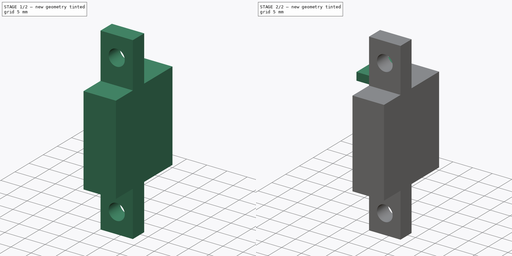
[diagram: build sequence overview — one tinted view per stage of 2, left to right]
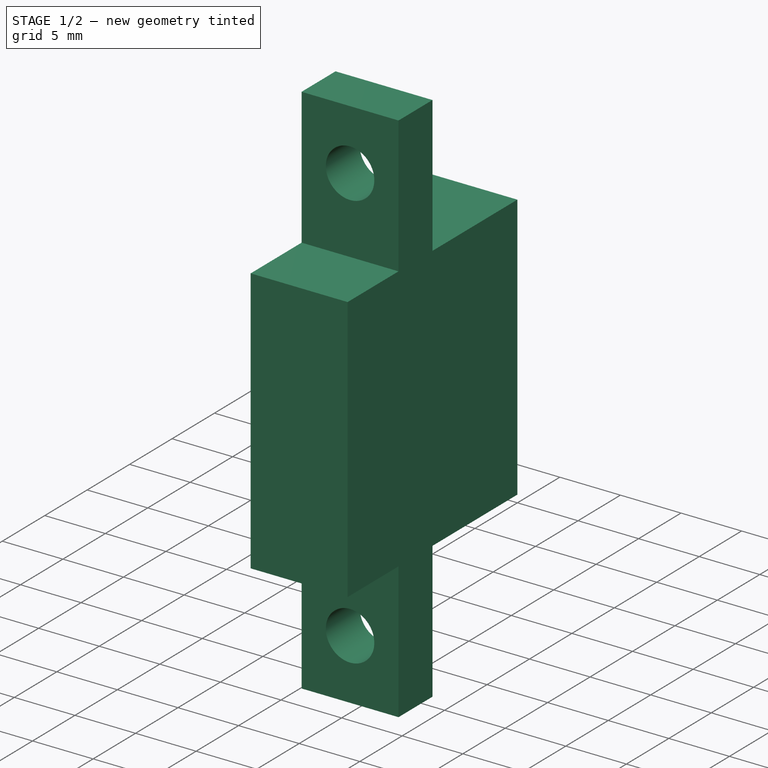
[diagram: stage 1 of 2 — iso view after this stage's code; geometry added in this stage tinted green]
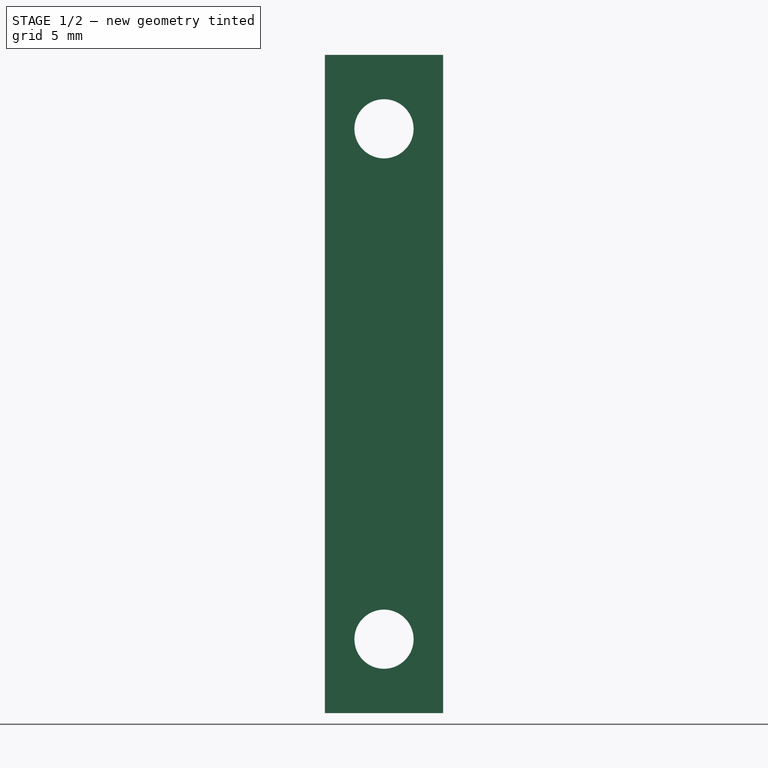
[diagram: stage 1 of 2 — front view after this stage's code; geometry added in this stage tinted green]
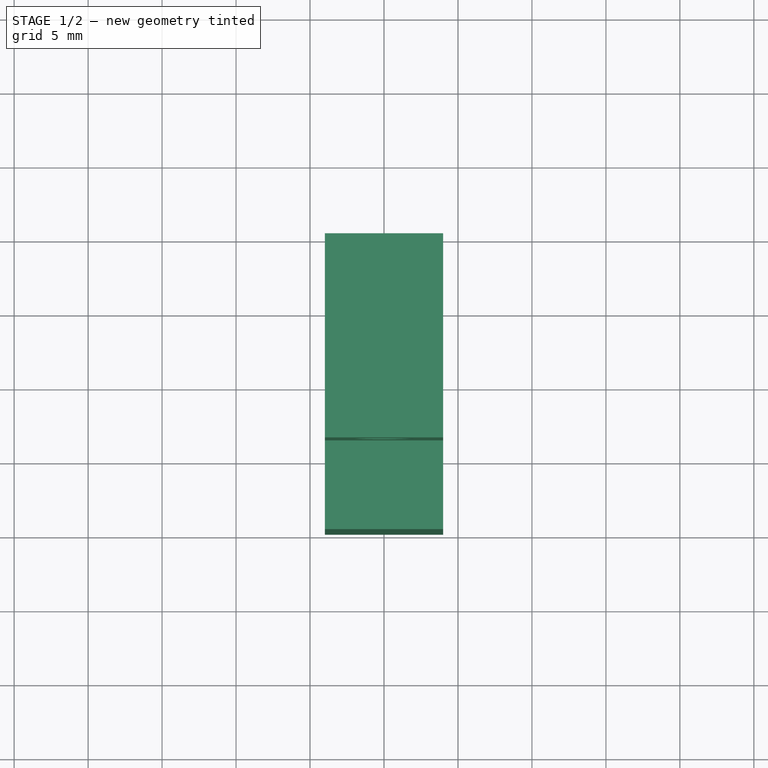
[diagram: stage 1 of 2 — top view after this stage's code; geometry added in this stage tinted green]
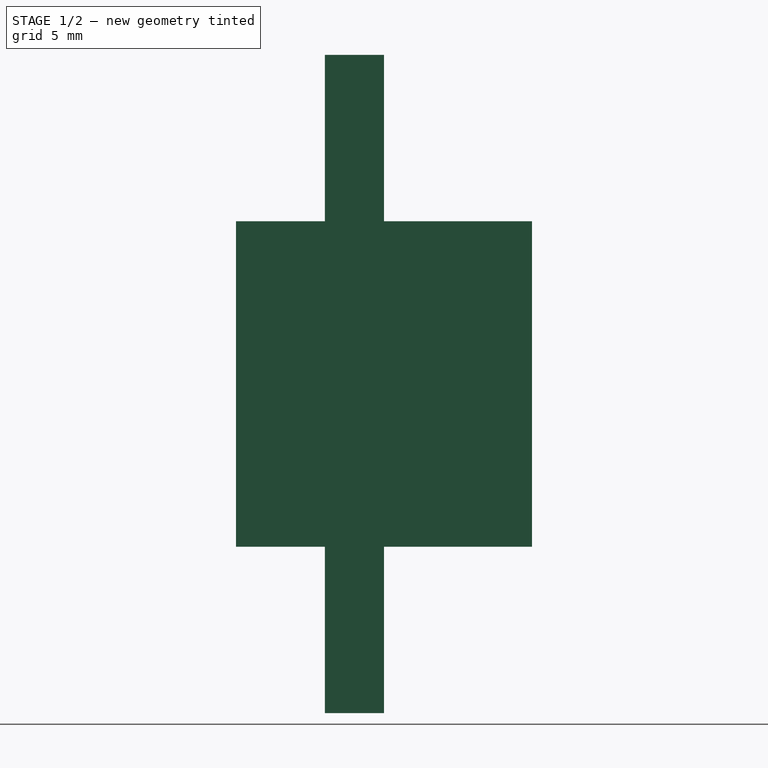
[diagram: stage 1 of 2 — right view after this stage's code; geometry added in this stage tinted green]
FCSTD DOCUMENT  (FreeCAD 2023.521R14555 (Git shallow))
Label: FanMount
License: All rights reserved
objects: Sketcher::SketchObject×4, PartDesign::Pad×4, PartDesign::CoordinateSystem×1, PartDesign::Plane×1, PartDesign::Body×1, App::Part×1
note: 23 computed .brp shape members not serialized (recipe doc carries the construction recipe); baked Part::Feature solids carry a one-line shape summary decoded from their .brp

FEATURE [PartDesign::CoordinateSystem] LCS_0
  AttacherType = Attacher::AttachEngine3D
  AttachmentSupport = -> [X_Axis]
  InvalidShape = false
  MapMode = 2
  Support = -> [X_Axis]
  TreeRank = 3
  ValidateShape = false
FEATURE [Sketcher::SketchObject] Sketch
  ArcFitTolerance = 1e-06
  AttachmentSupport = -> [XZ_Plane001]
  ExternalBSplineMaxDegree = 5
  ExternalBSplineTolerance = 0.0001
  FullyConstrained = true
  InternalTolerance = 1e-06
  InvalidShape = false
  MakeInternals = false
  MapMode = 5
  Placement = pos=(0,0,0) rot=(1,0,0;1.5708rad)
  Support = -> [XZ_Plane001]
  TreeRank = 23
  ValidateShape = false
  sketch-geometry (7):
    g0: LineSegment StartX=-4 StartY=-22.25 StartZ=0 EndX=-4 EndY=22.25 EndZ=0
    g1: LineSegment StartX=-4 StartY=22.25 StartZ=0 EndX=4 EndY=22.25 EndZ=0
    g2: LineSegment StartX=4 StartY=22.25 StartZ=0 EndX=4 EndY=-22.25 EndZ=0
    g3: LineSegment StartX=4 StartY=-22.25 StartZ=0 EndX=-4 EndY=-22.25 EndZ=0
    g4: GeomPoint [constr] X=0 Y=0 Z=0
    g5: Circle CenterX=0 CenterY=17.25 CenterZ=0 NormalX=0 NormalY=0 NormalZ=1 AngleXU=0 Radius=2
    g6: Circle CenterX=0 CenterY=-17.25 CenterZ=0 NormalX=0 NormalY=0 NormalZ=1 AngleXU=0 Radius=2
  constraints (17):
    c: Coincident(g0,g1)
    c: Coincident(g1,g2)
    c: Coincident(g2,g3)
    c: Coincident(g3,g0)
    c: Horizontal(g1)
    c: Horizontal(g3)
    c: Vertical(g0)
    c: Vertical(g2)
    c: Symmetric(g1,g0,g4)
    c: Coincident(g4,g-1)
    c: DistanceY(g2,g2) = 44.5
    c: DistanceX(g1,g1) = 8
    c: Vertical(g5,g4)
    c: Equal(g6,g5)
    c: Diameter(g5) = 4
    c: Symmetric(g5,g6,g4)
    c: DistanceY(g2,g6) = 5
FEATURE [PartDesign::Pad] Pad
  AddSubType = 0
  AlongSketchNormal = false
  AutoTaperInnerAngle = true
  CheckUpToFaceLimits = true
  ClaimChildren = false
  Direction = (0,-1,2e-16)
  Fit = 0
  FitJoin = 0
  InnerFit = 0
  InnerFitJoin = 0
  InvalidShape = false
  Length = 4
  Length2 = 10
  Linearize = true
  NewSolid = false
  Profile = -> Sketch
  ReferenceAxis = -> Sketch [N_Axis]
  Suppress = false
  TaperInnerAngle = 0
  TaperInnerAngleRev = 0
  TreeRank = 24
  Type = 0
  ValidateShape = true
  _ProfileBasedVersion = 1
FEATURE [PartDesign::Plane] DatumPlane
  AttachmentOffset = pos=(0,0,10) rot=(0,0,1;0rad)
  AttachmentSupport = -> [XZ_Plane001]
  InvalidShape = false
  Length = 10
  MapMode = 5
  MinimumLength = 10
  MinimumWidth = 10
  Placement = pos=(0,-10,2.2e-15) rot=(1,0,0;1.5708rad)
  ResizeMode = 0
  Support = -> [XZ_Plane001]
  TreeRank = 25
  ValidateShape = false
  Width = 44.5
FEATURE [Sketcher::SketchObject] Sketch001
  ArcFitTolerance = 1e-06
  AttachmentSupport = -> [DatumPlane]
  ExternalBSplineMaxDegree = 5
  ExternalBSplineTolerance = 0.0001
  ExternalGeometry = -> [Pad]
  FullyConstrained = true
  InternalTolerance = 1e-06
  InvalidShape = false
  MakeInternals = false
  MapMode = 5
  Placement = pos=(0,-10,2.2e-15) rot=(1,0,0;1.5708rad)
  Support = -> [DatumPlane]
  TreeRank = 26
  ValidateShape = false
  sketch-geometry (5):
    g0: LineSegment StartX=-4 StartY=-11 StartZ=0 EndX=-4 EndY=11 EndZ=0
    g1: LineSegment StartX=-4 StartY=11 StartZ=0 EndX=4 EndY=11 EndZ=0
    g2: LineSegment StartX=4 StartY=11 StartZ=0 EndX=4 EndY=-11 EndZ=0
    g3: LineSegment StartX=4 StartY=-11 StartZ=0 EndX=-4 EndY=-11 EndZ=0
    g4: GeomPoint [constr] X=0 Y=0 Z=0
  constraints (12):
    c: Coincident(g0,g1)
    c: Coincident(g1,g2)
    c: Coincident(g2,g3)
    c: Coincident(g3,g0)
    c: Horizontal(g1)
    c: Horizontal(g3)
    c: Vertical(g0)
    c: Vertical(g2)
    c: Symmetric(g1,g0,g4)
    c: Coincident(g4,g-1)
    c: Vertical(g-3,g1)
    c: DistanceY(g2,g2) = 22
FEATURE [PartDesign::Pad] Pad001
  AddSubType = 0
  AlongSketchNormal = false
  AutoTaperInnerAngle = true
  BaseFeature = -> Pad
  CheckUpToFaceLimits = true
  ClaimChildren = false
  Direction = (0,-1,2e-16)
  Fit = 0
  FitJoin = 0
  InnerFit = 0
  InnerFitJoin = 0
  InvalidShape = false
  Length = 10
  Length2 = 10
  Linearize = true
  NewSolid = false
  Offset = 10
  Profile = -> Sketch001
  ReferenceAxis = -> Sketch001 [N_Axis]
  Suppress = false
  TaperInnerAngle = 0
  TaperInnerAngleRev = 0
  TreeRank = 27
  Type = 3
  UpToFace = -> Pad [Face7]
  ValidateShape = true
  _ProfileBasedVersion = 1
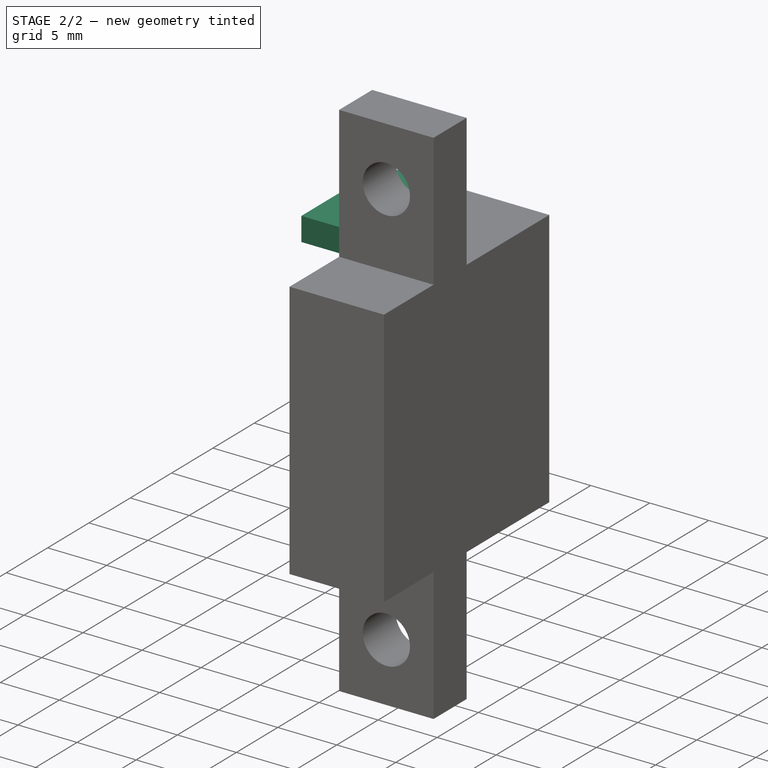
[diagram: stage 2 of 2 — iso view after this stage's code; geometry added in this stage tinted green]
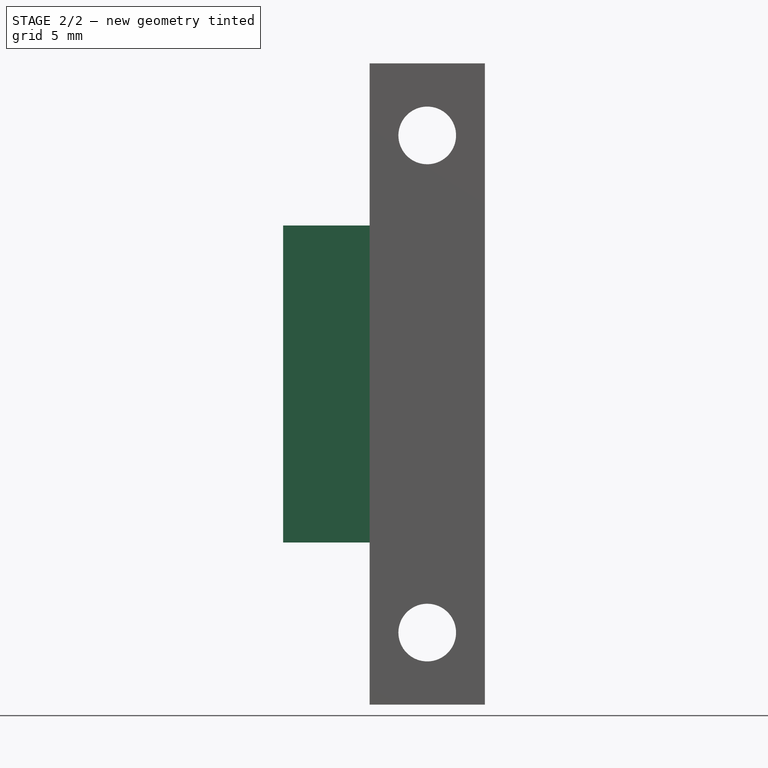
[diagram: stage 2 of 2 — front view after this stage's code; geometry added in this stage tinted green]
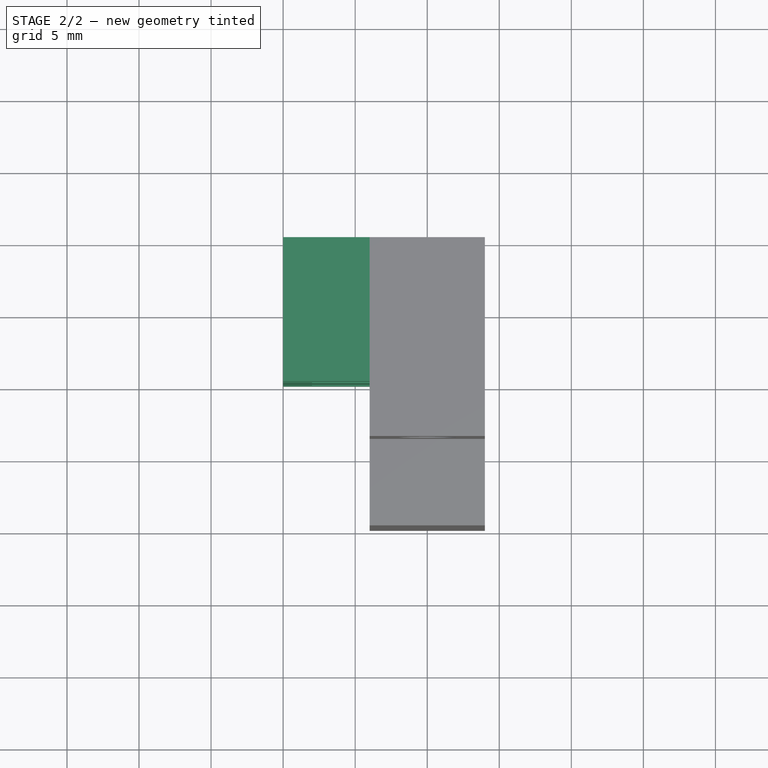
[diagram: stage 2 of 2 — top view after this stage's code; geometry added in this stage tinted green]
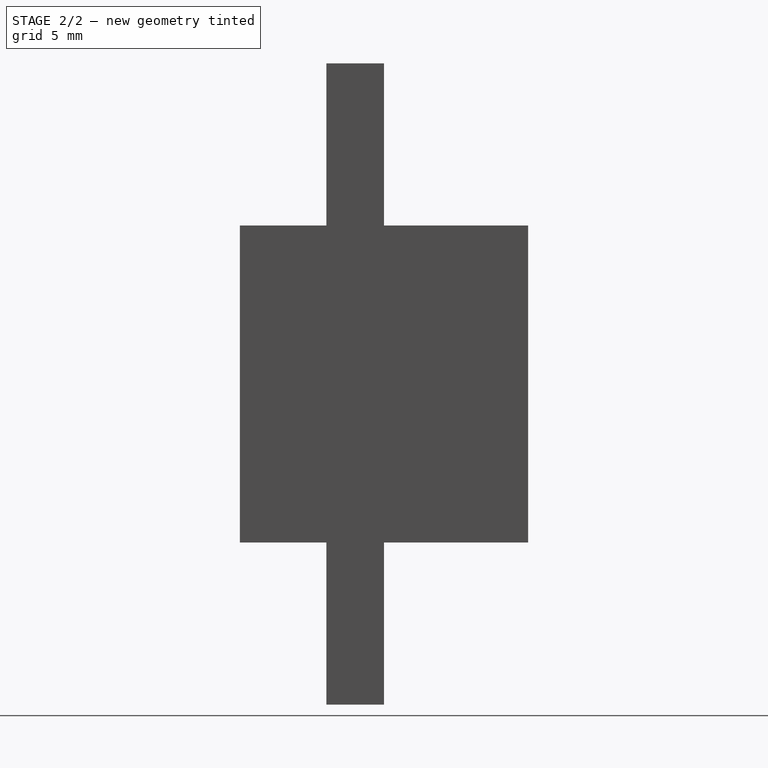
[diagram: stage 2 of 2 — right view after this stage's code; geometry added in this stage tinted green]
FEATURE [Sketcher::SketchObject] Sketch002
  ArcFitTolerance = 1e-06
  AttachmentSupport = -> [Pad001]
  ExternalBSplineMaxDegree = 5
  ExternalBSplineTolerance = 0.0001
  ExternalGeometry = -> [Pad001]
  FullyConstrained = true
  InternalTolerance = 1e-06
  InvalidShape = false
  MakeInternals = false
  MapMode = 5
  Placement = pos=(0,10,-2.2e-15) rot=(0,0.707107,0.707107;3.14159rad)
  Support = -> [Pad001]
  TreeRank = 28
  ValidateShape = false
  sketch-geometry (4):
    g0: LineSegment StartX=4 StartY=11 StartZ=0 EndX=10 EndY=11 EndZ=0
    g1: LineSegment StartX=10 StartY=11 StartZ=0 EndX=10 EndY=-11 EndZ=0
    g2: LineSegment StartX=10 StartY=-11 StartZ=0 EndX=4 EndY=-11 EndZ=0
    g3: LineSegment StartX=4 StartY=-11 StartZ=0 EndX=4 EndY=11 EndZ=0
  constraints (10):
    c: Coincident(g0,g1)
    c: Coincident(g1,g2)
    c: Coincident(g2,g3)
    c: Coincident(g3,g0)
    c: Horizontal(g0)
    c: Horizontal(g2)
    c: Vertical(g1)
    c: Coincident(g0,g-3)
    c: Coincident(g2,g-3)
    c: DistanceX(g2,g2) = 6
FEATURE [PartDesign::Pad] Pad002
  AddSubType = 0
  AlongSketchNormal = false
  AutoTaperInnerAngle = true
  BaseFeature = -> Pad001
  CheckUpToFaceLimits = true
  ClaimChildren = false
  Direction = (0,1,-2e-16)
  Fit = 0
  FitJoin = 0
  InnerFit = 0
  InnerFitJoin = 0
  InvalidShape = false
  Length = 5
  Length2 = 10
  Linearize = true
  NewSolid = false
  Profile = -> Sketch002
  ReferenceAxis = -> Sketch002 [N_Axis]
  Reversed = true
  Suppress = false
  TaperInnerAngle = 0
  TaperInnerAngleRev = 0
  TreeRank = 29
  Type = 0
  ValidateShape = true
  _ProfileBasedVersion = 1
FEATURE [Sketcher::SketchObject] Sketch003
  ArcFitTolerance = 1e-06
  AttachmentSupport = -> [Pad002]
  ExternalBSplineMaxDegree = 5
  ExternalBSplineTolerance = 0.0001
  ExternalGeometry = -> [Pad002]
  FullyConstrained = true
  InternalTolerance = 1e-06
  InvalidShape = false
  MakeInternals = false
  MapMode = 5
  Placement = pos=(0,5,-8e-16) rot=(1,0,0;1.5708rad)
  Support = -> [Pad002]
  TreeRank = 30
  ValidateShape = false
  sketch-geometry (23):
    g0: LineSegment StartX=-8 StartY=6 StartZ=0 EndX=-10 EndY=6 EndZ=0
    g1: LineSegment StartX=-10 StartY=6 StartZ=0 EndX=-10 EndY=4 EndZ=0
    g2: LineSegment StartX=-10 StartY=4 StartZ=0 EndX=-8 EndY=4 EndZ=0
    g3: LineSegment StartX=-8 StartY=4 StartZ=0 EndX=-8 EndY=6 EndZ=0
    g4: LineSegment StartX=-8 StartY=-4 StartZ=0 EndX=-10 EndY=-4 EndZ=0
    g5: LineSegment StartX=-10 StartY=-4 StartZ=0 EndX=-10 EndY=-6 EndZ=0
    g6: LineSegment StartX=-10 StartY=-6 StartZ=0 EndX=-8 EndY=-6 EndZ=0
    g7: LineSegment StartX=-8 StartY=-6 StartZ=0 EndX=-8 EndY=-4 EndZ=0
    g8: LineSegment StartX=-4 StartY=11 StartZ=0 EndX=-10 EndY=11 EndZ=0
    g9: LineSegment StartX=-10 StartY=11 StartZ=0 EndX=-10 EndY=9 EndZ=0
    g10: LineSegment StartX=-10 StartY=9 StartZ=0 EndX=-4 EndY=9 EndZ=0
    g11: LineSegment StartX=-4 StartY=9 StartZ=0 EndX=-4 EndY=11 EndZ=0
    g12: LineSegment StartX=-4 StartY=-9 StartZ=0 EndX=-10 EndY=-9 EndZ=0
    g13: LineSegment StartX=-10 StartY=-9 StartZ=0 EndX=-10 EndY=-11 EndZ=0
    g14: LineSegment StartX=-10 StartY=-11 StartZ=0 EndX=-4 EndY=-11 EndZ=0
    g15: LineSegment StartX=-4 StartY=-11 StartZ=0 EndX=-4 EndY=-9 EndZ=0
    g16: LineSegment StartX=-10 StartY=2.5 StartZ=0 EndX=-10 EndY=-2.5 EndZ=0
    g17: LineSegment StartX=-10 StartY=-2.5 StartZ=0 EndX=-4 EndY=-2.5 EndZ=0
    g18: LineSegment StartX=-4 StartY=-2.5 StartZ=0 EndX=-4 EndY=2.5 EndZ=0
    g19: LineSegment StartX=-4 StartY=2.5 StartZ=0 EndX=-10 EndY=2.5 EndZ=0
    g20: GeomPoint [constr] X=-7 Y=-1.9e-15 Z=0
    g21: GeomPoint [constr] X=-10 Y=5 Z=0
    g22: GeomPoint [constr] X=-10 Y=-5 Z=0
  constraints (56):
    c: Coincident(g0,g1)
    c: Coincident(g1,g2)
    c: Coincident(g2,g3)
    c: Coincident(g3,g0)
    c: Horizontal(g0)
    c: Horizontal(g2)
    c: Vertical(g1)
    c: Vertical(g3)
    c: Coincident(g4,g5)
    c: Coincident(g5,g6)
    c: Coincident(g6,g7)
    c: Coincident(g7,g4)
    c: Horizontal(g4)
    c: Horizontal(g6)
    c: Vertical(g5)
    c: Vertical(g7)
    c: Coincident(g8,g9)
    c: Coincident(g9,g10)
    c: Coincident(g10,g11)
    c: Coincident(g11,g8)
    c: Horizontal(g10)
    c: Vertical(g9)
    c: Vertical(g11)
    c: Coincident(g12,g13)
    c: Coincident(g13,g14)
    c: Coincident(g14,g15)
    c: Coincident(g15,g12)
    c: Horizontal(g12)
    c: Vertical(g15)
    c: Coincident(g13,g-4)
    c: Coincident(g14,g-4)
    c: Coincident(g8,g-3)
    c: Coincident(g8,g-3)
    c: Coincident(g16,g17)
    c: Coincident(g17,g18)
    c: Coincident(g18,g19)
    c: Coincident(g19,g16)
    c: Horizontal(g17)
    c: Horizontal(g19)
    c: Vertical(g16)
    c: Vertical(g18)
    c: Symmetric(g17,g16,g20)
    c: Symmetric(g8,g13,g20)
    c: Vertical(g17,g14)
    c: Equal(g4,g2)
    c: Equal(g3,g7)
    c: Vertical(g13,g5)
    c: Symmetric(g4,g1,g-1)
    c: Symmetric(g5,g5,g22)
    c: Symmetric(g1,g1,g21)
    c: DistanceY(g22,g21) = 10
    c: DistanceY(g5,g5) = 2
    c: DistanceY(g16,g16) = 5
    c: Equal(g7,g4)
    c: DistanceY(g12,g9) = 18
    c: Symmetric(g9,g12,g-1)
FEATURE [PartDesign::Pad] Pad003
  AddSubType = 0
  AlongSketchNormal = false
  AutoTaperInnerAngle = true
  BaseFeature = -> Pad002
  CheckUpToFaceLimits = true
  ClaimChildren = false
  Direction = (0,-1,2e-16)
  Fit = 0
  FitJoin = 0
  InnerFit = 0
  InnerFitJoin = 0
  InvalidShape = false
  Length = 5
  Length2 = 10
  Linearize = true
  NewSolid = false
  Profile = -> Sketch003
  ReferenceAxis = -> Sketch003 [N_Axis]
  Suppress = false
  TaperInnerAngle = 0
  TaperInnerAngleRev = 0
  TreeRank = 31
  Type = 0
  ValidateShape = true
  _ProfileBasedVersion = 1
FEATURE [PartDesign::Body] Body
  AutoGroupSolids = false
  ClaimAllChildren = false
  ExportMode = 0
  Group = -> [Sketch,Pad,DatumPlane,Sketch001,Pad001,Sketch002,Pad002,Sketch003,Pad003]
  InvalidShape = false
  Origin = -> Origin001
  Tip = -> Pad003
  TreeRank = 22
  ValidateShape = false
  _ExportChildren = -> [Pad,DatumPlane,Pad001,Pad002,Pad003]
  _GroupVersion = 1
FEATURE [App::Part] Mount
  ClaimAllChildren = false
  ExportMode = 1
  Group = -> [LCS_0,Body]
  Origin = -> Origin
  TreeRank = 11
  _ExportChildren = -> [LCS_0,Body]
  _GroupVersion = 1
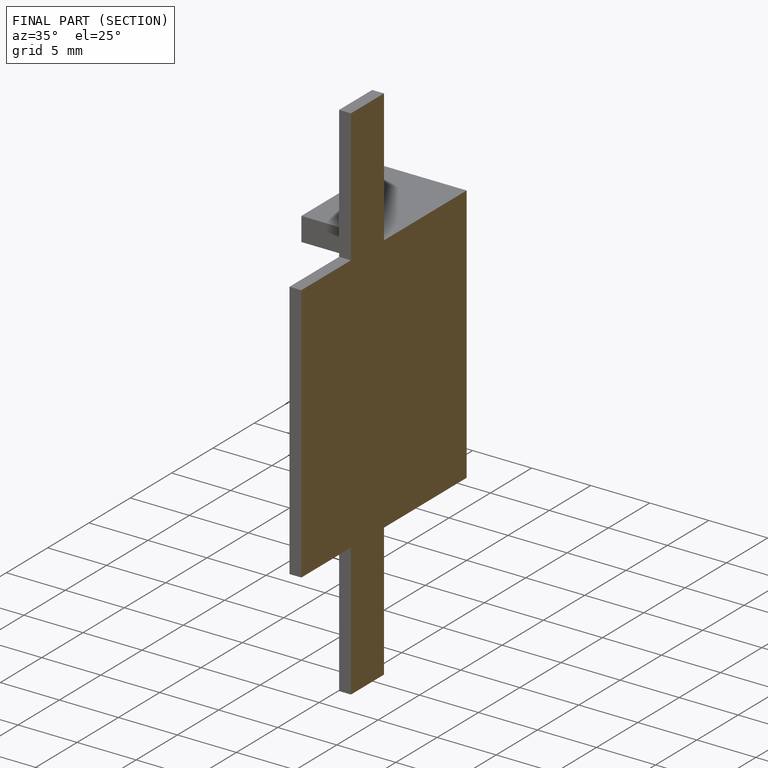
[diagram: finished part — half-section view (interior)]
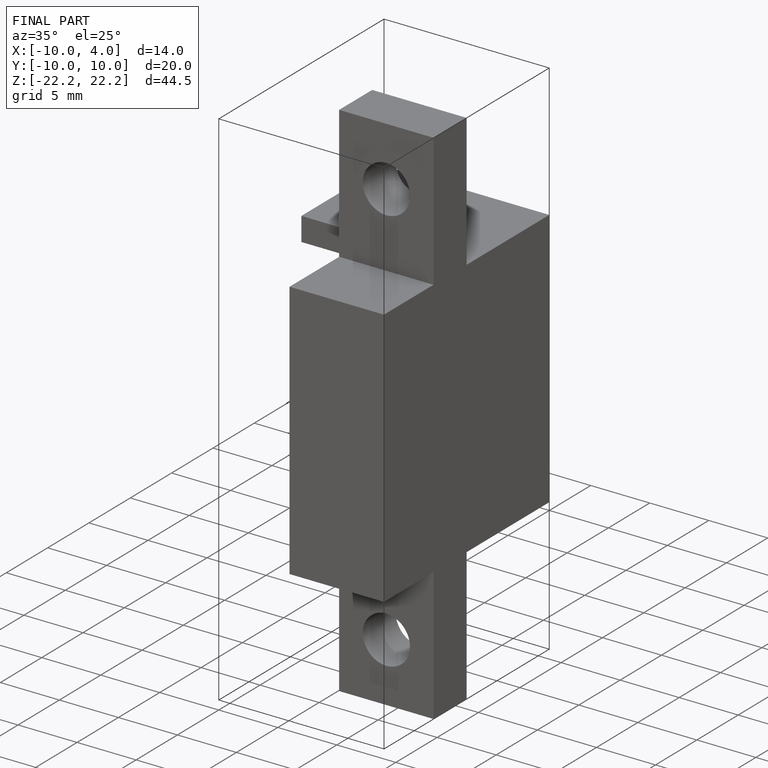
[diagram: finished part — iso view with bounding-box wireframe]
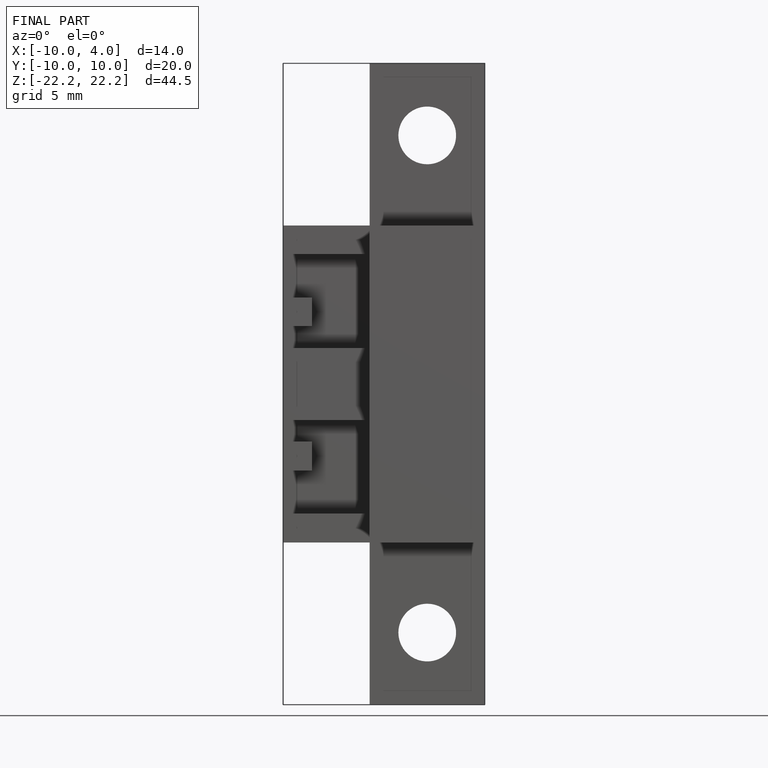
[diagram: finished part — front view with bounding-box wireframe]
